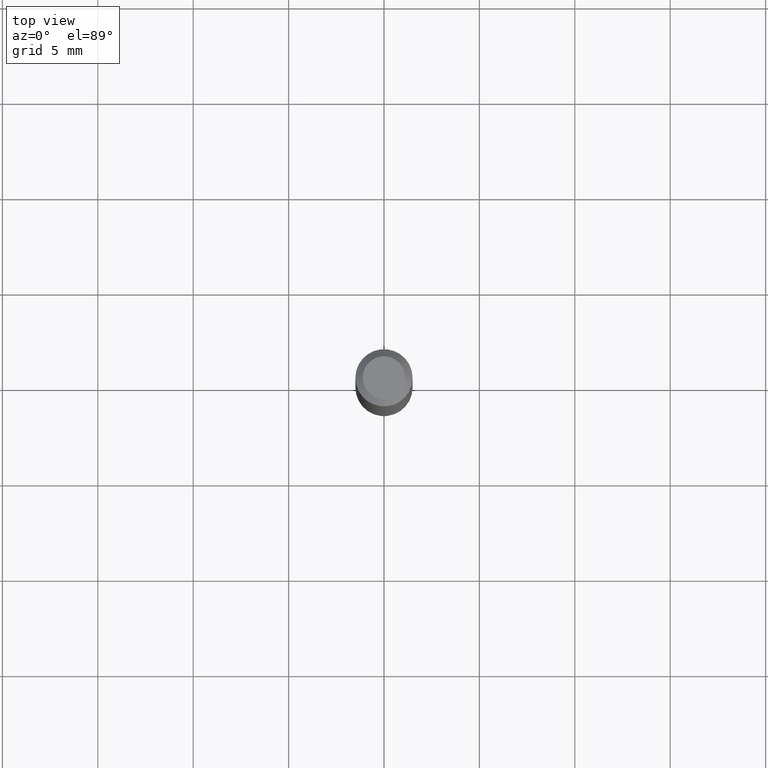
[diagram: clean part render]
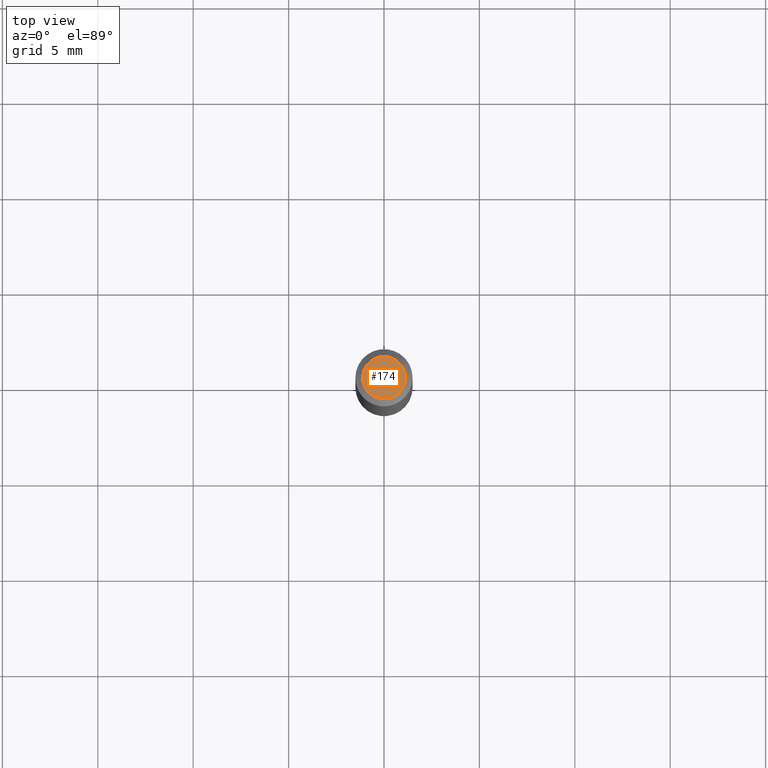
[diagram: same view with one face highlighted and labeled with its STEP entity id]
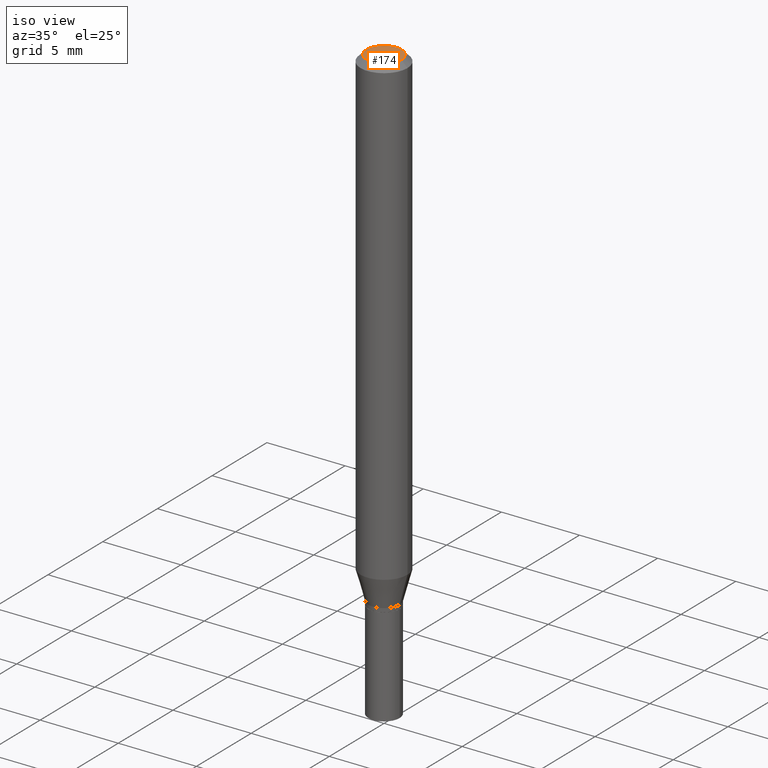
[diagram: same view with one face highlighted and labeled with its STEP entity id]
A machine part, top view. The second image highlights one B-rep face of the part: STEP entity #174.
A second angle (iso view) of the same face is appended — the face is thin or edge-on in the first view.
In plain terms, the highlighted planar face has unit normal (0, -0, -1).
Its self-contained STEP definition (entity closure, byte-faithful):
#38 = AXIS2_PLACEMENT_3D ( 'NONE', #69, #176, #106 ) ;
#52 = CARTESIAN_POINT ( 'NONE',  ( -8.641182519006289553E-45, 1.233731848647591164E-30, 3.533548453838711334E-16 ) ) ;
#69 = CARTESIAN_POINT ( 'NONE',  ( 3.075995059520799729E-16, 0.04404999999999999888, 2.287766971589501637E-17 ) ) ;
#106 = DIRECTION ( 'NONE',  ( -1.000000000000000000, 6.982962677686265922E-15, -4.876176775795935793E-29 ) ) ;
#109 = DIRECTION ( 'NONE',  ( 1.000000000000000000, -6.982962677686265922E-15, 4.819687581474398999E-29 ) ) ;
#121 = VERTEX_POINT ( 'NONE', #395 ) ;
#136 = DIRECTION ( 'NONE',  ( 1.000000000000000000, -6.982962677686265922E-15, 4.819687581474398999E-29 ) ) ;
#138 = ORIENTED_EDGE ( 'NONE', *, *, #418, .T. ) ;
#153 = CARTESIAN_POINT ( 'NONE',  ( -8.641182519006289553E-45, 1.233731848647591164E-30, 3.533548453838711334E-16 ) ) ;
#155 = CIRCLE ( 'NONE', #170, 0.04404999999999999888 ) ;
#170 = AXIS2_PLACEMENT_3D ( 'NONE', #52, #313, #136 ) ;
#174 = ADVANCED_FACE ( 'NONE', ( #430 ), #285, .F. ) ;
#176 = DIRECTION ( 'NONE',  ( 2.438088387897960049E-29, -3.491481338843145188E-15, -1.000000000000000000 ) ) ;
#224 = VERTEX_POINT ( 'NONE', #290 ) ;
#285 = PLANE ( 'NONE',  #38 ) ;
#289 = DIRECTION ( 'NONE',  ( -2.445468806185136597E-29, 3.491481338843145583E-15, 1.000000000000000000 ) ) ;
#290 = CARTESIAN_POINT ( 'NONE',  ( 0.04404999999999999888, -3.798447818264455642E-16, 3.533548453838735986E-16 ) ) ;
#313 = DIRECTION ( 'NONE',  ( -2.445468806185136597E-29, 3.491481338843145583E-15, 1.000000000000000000 ) ) ;
#326 = EDGE_CURVE ( 'NONE', #224, #121, #155, .T. ) ;
#366 = CIRCLE ( 'NONE', #400, 0.04404999999999999888 ) ;
#370 = EDGE_LOOP ( 'NONE', ( #138, #373 ) ) ;
#373 = ORIENTED_EDGE ( 'NONE', *, *, #326, .T. ) ;
#395 = CARTESIAN_POINT ( 'NONE',  ( -0.04404999999999999888, 3.337856159934041534E-16, 3.533548453838689148E-16 ) ) ;
#400 = AXIS2_PLACEMENT_3D ( 'NONE', #153, #289, #109 ) ;
#418 = EDGE_CURVE ( 'NONE', #121, #224, #366, .T. ) ;
#430 = FACE_OUTER_BOUND ( 'NONE', #370, .T. ) ;